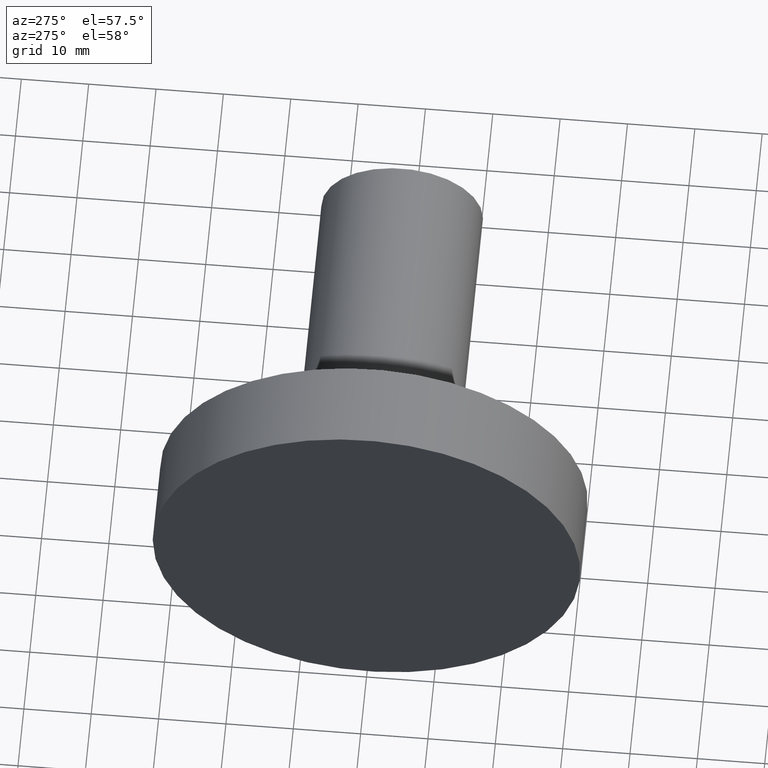
[diagram: clean part render]
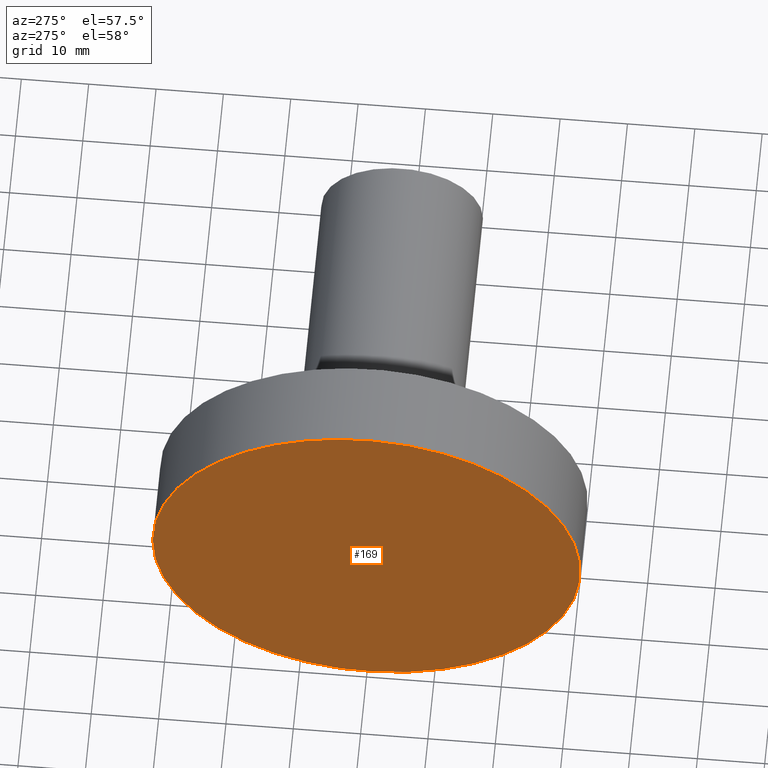
[diagram: same view with one face highlighted and labeled with its STEP entity id]
A machine part, auxiliary view. The second image highlights one B-rep face of the part: STEP entity #169.
In plain terms, the highlighted planar face has unit normal (-1, 0, 0).
Its self-contained STEP definition (entity closure, byte-faithful):
#11 = DIRECTION ( 'NONE',  ( -7.084733548786341591E-17, -1.000000000000000000, 0.0000000000000000000 ) ) ;
#36 = CARTESIAN_POINT ( 'NONE',  ( 0.0000000000000000000, 7.703719777548943412E-31, 0.0000000000000000000 ) ) ;
#40 = CARTESIAN_POINT ( 'NONE',  ( 2.249402901739663612E-15, 31.75000000000000000, 0.0000000000000000000 ) ) ;
#49 = DIRECTION ( 'NONE',  ( -1.000000000000000000, 7.084733548786341591E-17, 0.0000000000000000000 ) ) ;
#52 = PLANE ( 'NONE',  #171 ) ;
#62 = FACE_OUTER_BOUND ( 'NONE', #99, .T. ) ;
#69 = ORIENTED_EDGE ( 'NONE', *, *, #174, .F. ) ;
#99 = EDGE_LOOP ( 'NONE', ( #69 ) ) ;
#104 = CARTESIAN_POINT ( 'NONE',  ( -1.124701450869831806E-15, 7.968210101346169908E-32, 0.0000000000000000000 ) ) ;
#123 = VERTEX_POINT ( 'NONE', #40 ) ;
#136 = DIRECTION ( 'NONE',  ( 1.000000000000000000, -7.084733548786341591E-17, -0.0000000000000000000 ) ) ;
#147 = AXIS2_PLACEMENT_3D ( 'NONE', #36, #136, #156 ) ;
#156 = DIRECTION ( 'NONE',  ( 7.084733548786341591E-17, 1.000000000000000000, 0.0000000000000000000 ) ) ;
#169 = ADVANCED_FACE ( 'NONE', ( #62 ), #52, .T. ) ;
#171 = AXIS2_PLACEMENT_3D ( 'NONE', #104, #49, #11 ) ;
#173 = CIRCLE ( 'NONE', #147, 31.75000000000000000 ) ;
#174 = EDGE_CURVE ( 'NONE', #123, #123, #173, .T. ) ;